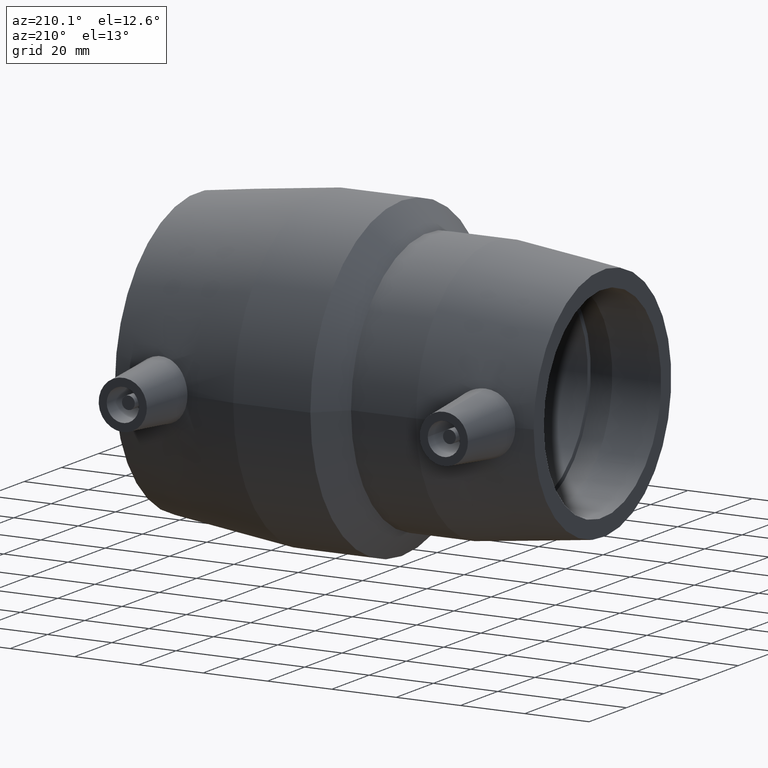
[diagram: clean part render]
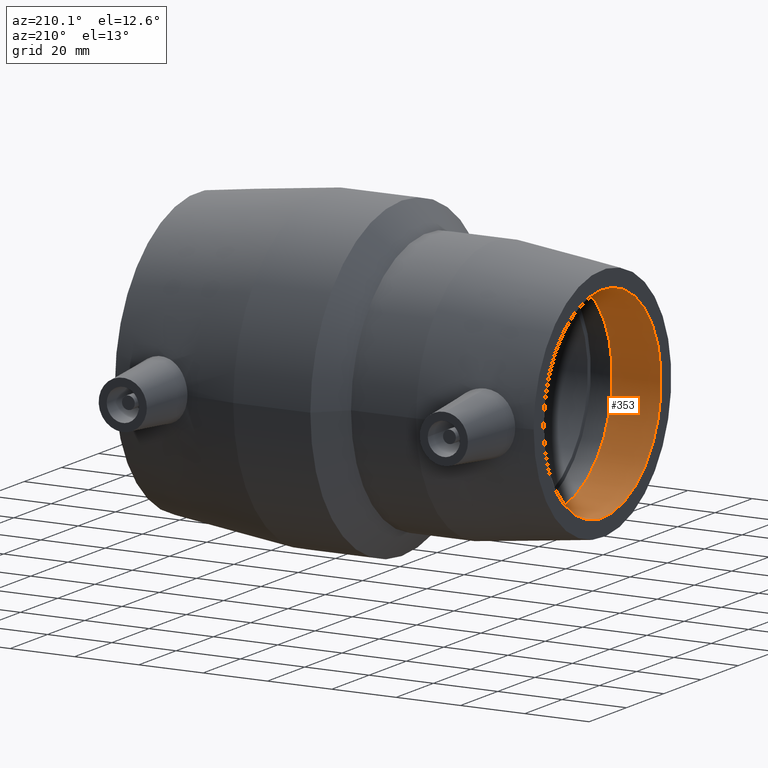
[diagram: same view with one face highlighted and labeled with its STEP entity id]
A machine part, auxiliary view. The second image highlights one B-rep face of the part: STEP entity #353.
In plain terms, the highlighted cylindrical surface (bore or boss wall) has radius 31.5 mm, axis along (1, 0, 0).
Its self-contained STEP definition (entity closure, byte-faithful):
#52=FACE_BOUND('',#154,.T.);
#66=CYLINDRICAL_SURFACE('',#413,31.5);
#95=FACE_OUTER_BOUND('',#153,.T.);
#153=EDGE_LOOP('',(#306));
#154=EDGE_LOOP('',(#307));
#186=CIRCLE('',#412,31.5);
#187=CIRCLE('',#414,31.5);
#217=VERTEX_POINT('',#691);
#218=VERTEX_POINT('',#694);
#248=EDGE_CURVE('',#217,#217,#186,.T.);
#249=EDGE_CURVE('',#218,#218,#187,.T.);
#306=ORIENTED_EDGE('',*,*,#249,.F.);
#307=ORIENTED_EDGE('',*,*,#248,.T.);
#353=ADVANCED_FACE('',(#95,#52),#66,.F.);
#412=AXIS2_PLACEMENT_3D('',#692,#528,#529);
#413=AXIS2_PLACEMENT_3D('',#693,#530,#531);
#414=AXIS2_PLACEMENT_3D('',#695,#532,#533);
#528=DIRECTION('center_axis',(1.,1.83697019872103E-16,0.));
#529=DIRECTION('ref_axis',(0.,0.,-1.));
#530=DIRECTION('center_axis',(1.,1.83697019872103E-16,0.));
#531=DIRECTION('ref_axis',(-1.72213011695957E-16,1.,0.));
#532=DIRECTION('center_axis',(1.,1.83697019872103E-16,0.));
#533=DIRECTION('ref_axis',(0.,0.,-1.));
#691=CARTESIAN_POINT('',(-47.8,31.5,0.));
#692=CARTESIAN_POINT('Origin',(-47.8,2.79219470205597E-15,0.));
#693=CARTESIAN_POINT('Origin',(-55.4,1.39609735102798E-15,0.));
#694=CARTESIAN_POINT('',(-63.,31.5,0.));
#695=CARTESIAN_POINT('Origin',(-63.,9.86076131526265E-31,0.));